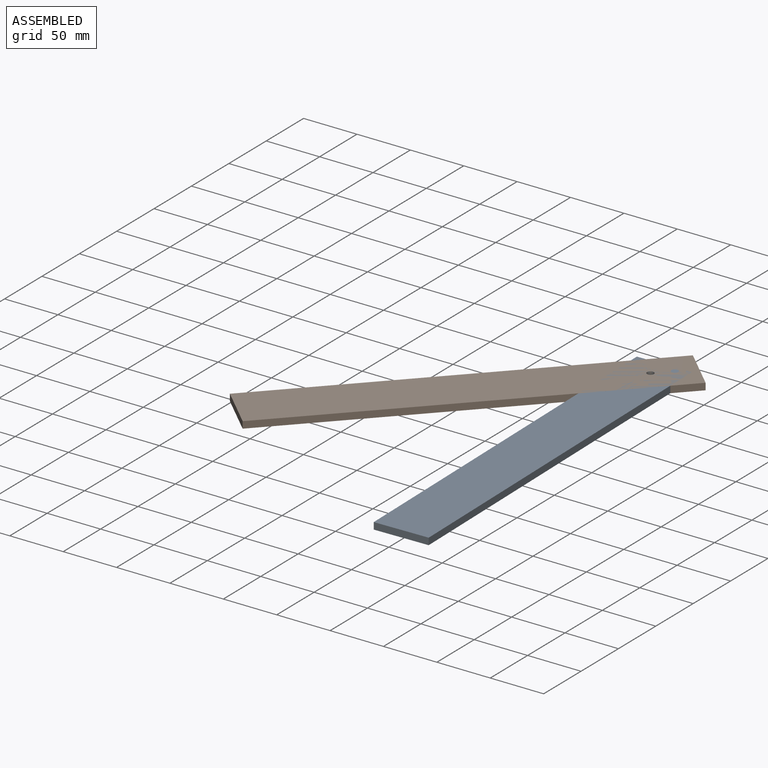
[diagram: assembled view]
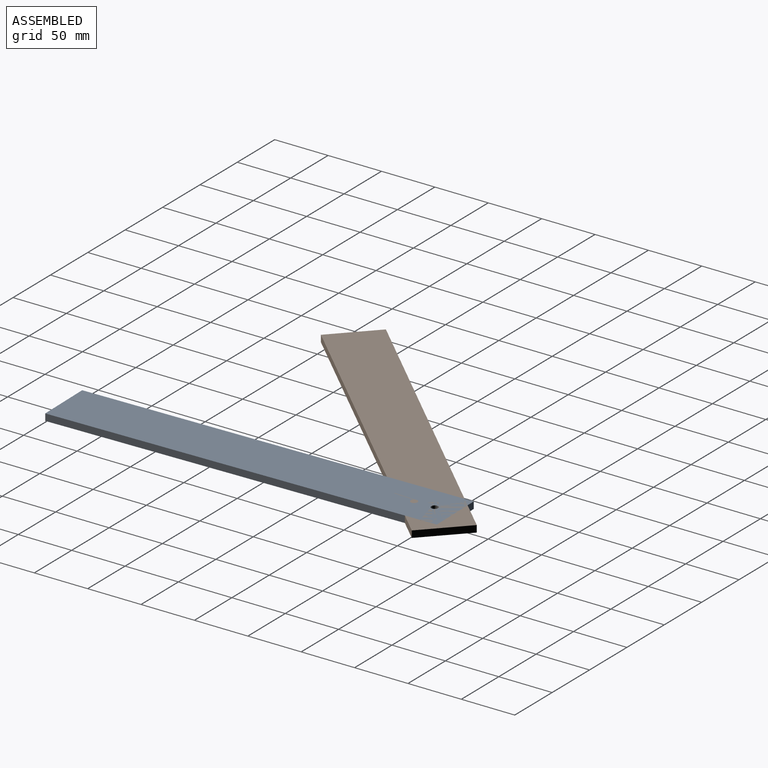
[diagram: assembled view, second angle]
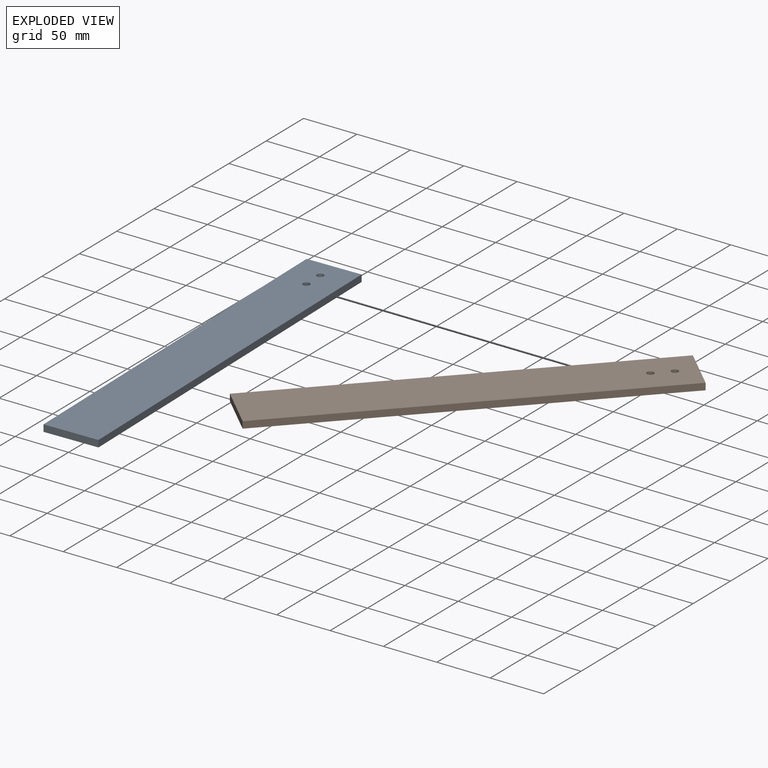
[diagram: exploded view]
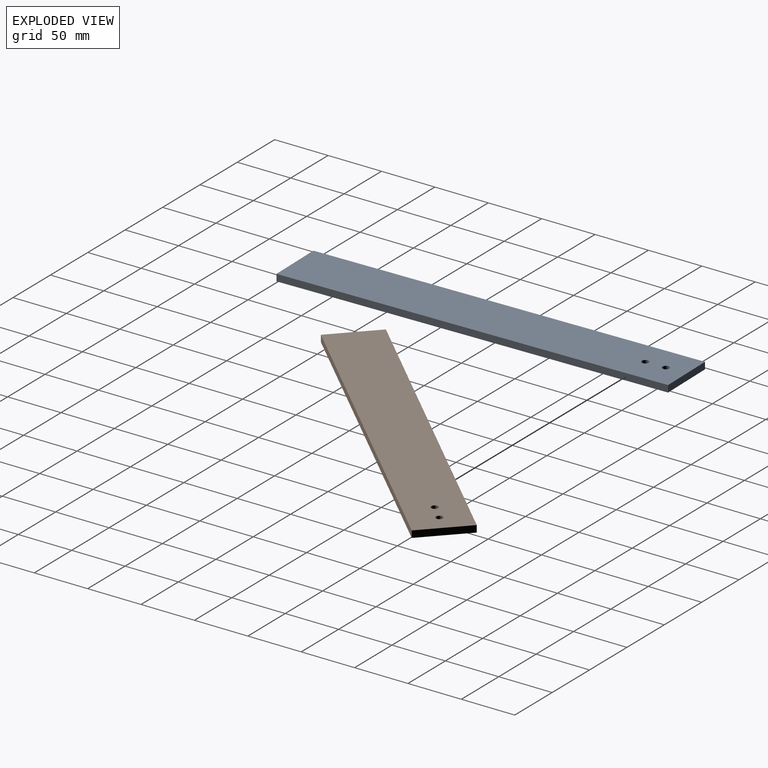
[diagram: exploded view, second angle]
ASSEMBLY  parts=2 mates=2
PART A: 8 faces, bbox 50.8x362x6.4 mm
  f0: plane 50.8x6.35mm, normal (0,1,0), area 322.6mm2, adj f1,f3,f4,f5
  f1: plane 361.95x6.35mm, normal (-1,0,0), area 2298.4mm2, adj f0,f2,f4,f5
  f2: plane 50.8x6.35mm, normal (0,-1,0), area 322.6mm2, adj f1,f3,f4,f5
  f3: plane 361.95x6.35mm, normal (1,0,0), area 2298.4mm2, adj f0,f2,f4,f5
  f4: plane 361.95x50.8mm, normal (0,0,1), area 18323.7mm2, adj f0,f1,f2,f3,f6,f7
  f5: plane 361.95x50.8mm, normal (0,0,-1), area 18323.7mm2, adj f0,f1,f2,f3,f6,f7
  f6: cylinder r=3.17mm len=6.35mm, axis (0,0,1), area 126.7mm2, adj f4,f5
  f7: cylinder r=3.17mm len=6.35mm, axis (0,0,1), area 126.7mm2, adj f4,f5
PART B: same geometry as A
PLACE A rot(axis=(0,0,1),1.1deg) t=(3.12,-161.89,0)mm
PLACE B rot(axis=(0,0,-1),43.9deg) t=(-99.06,-102.96,0)mm
MATE revolute B.f6 <-> A.f7  axis (0,0,-1) through (0,0,0)mm
MATE planar A.f4 <-> B.f4  axis (0,0,1) through (3.13,-162.42,6.35)mm
